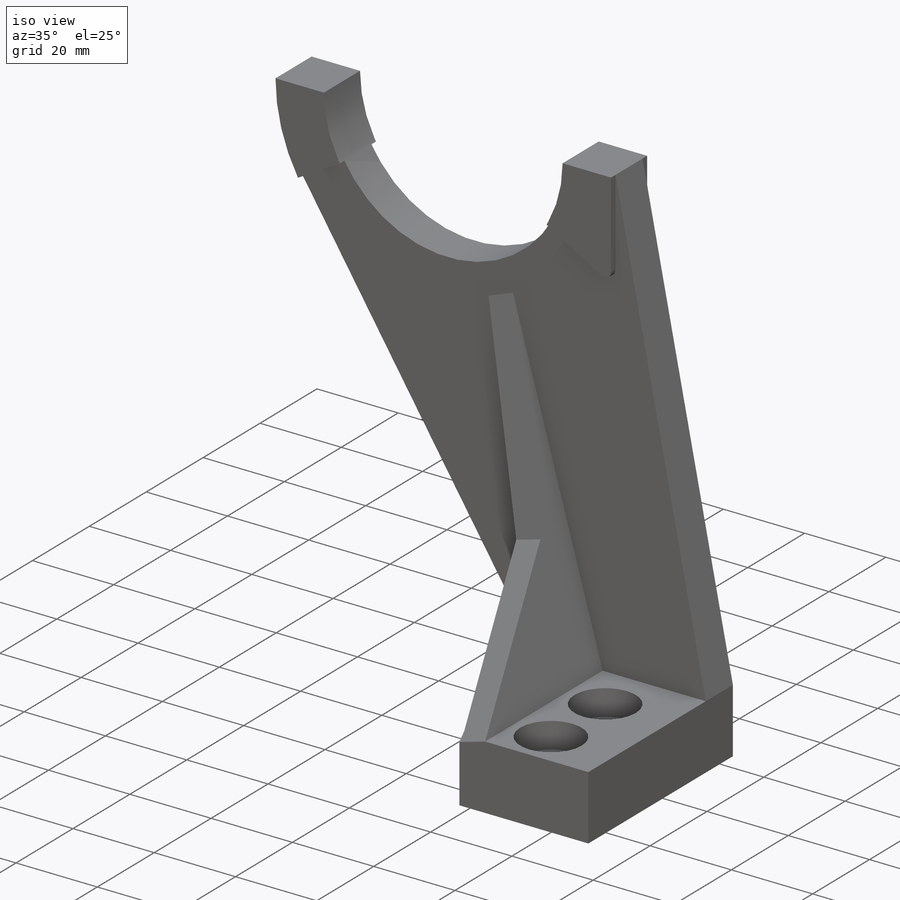
[diagram: iso view]
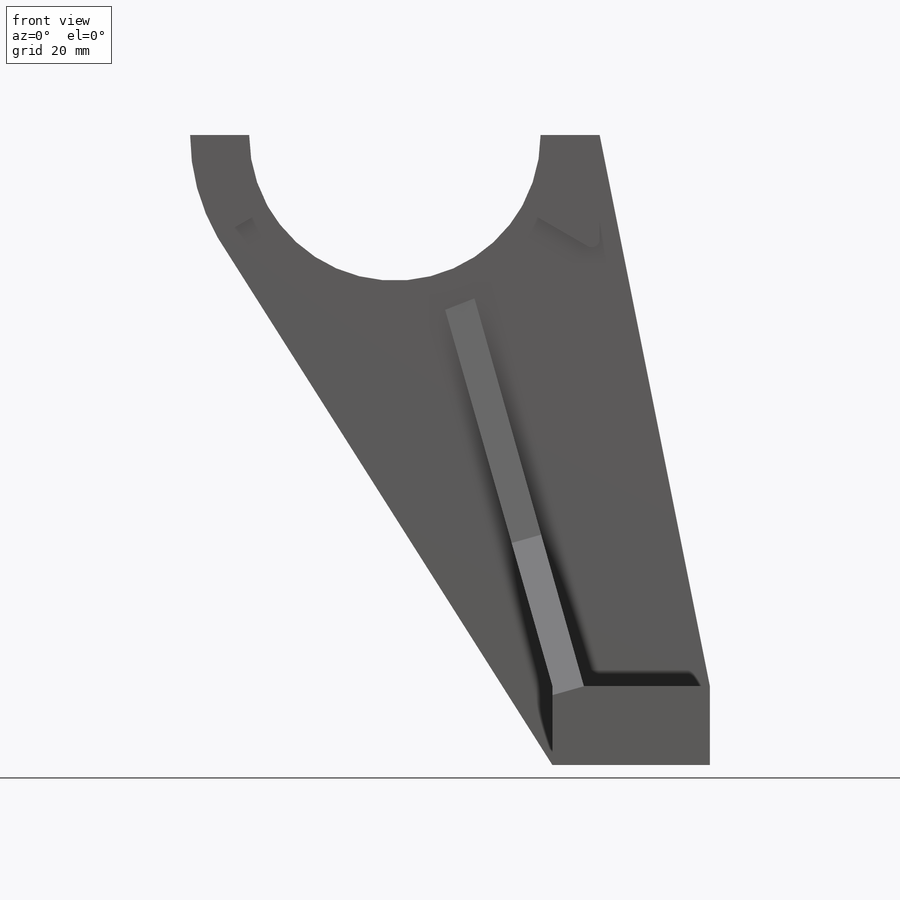
[diagram: front view]
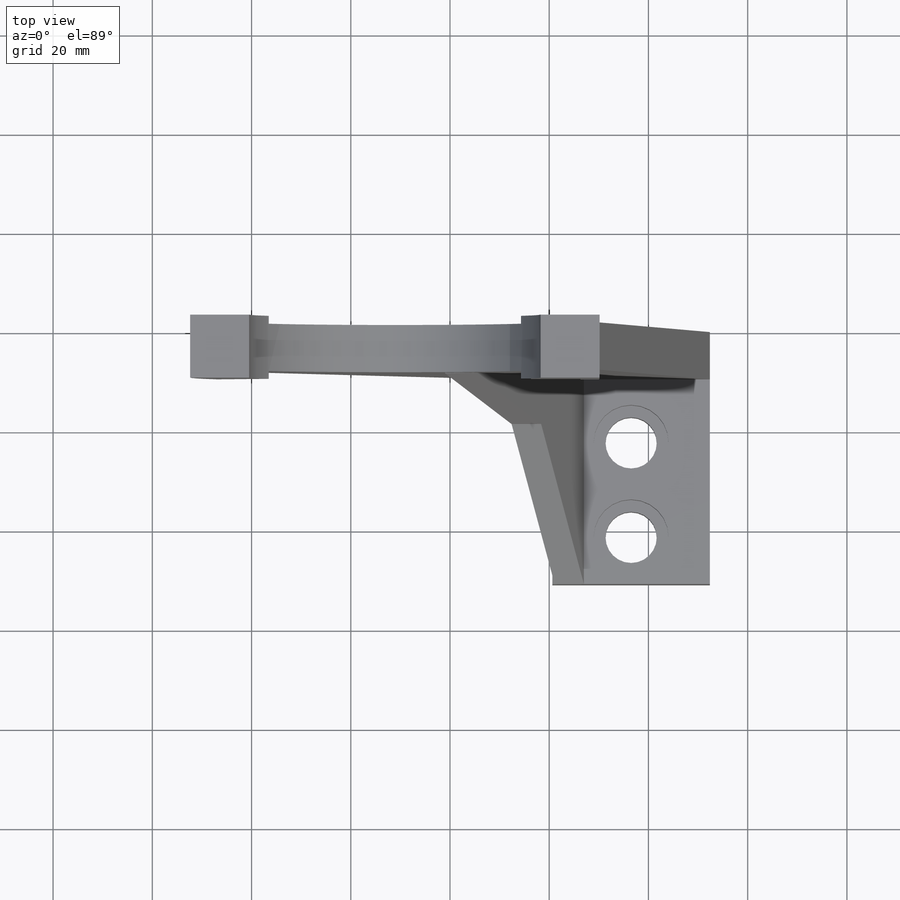
[diagram: top view]
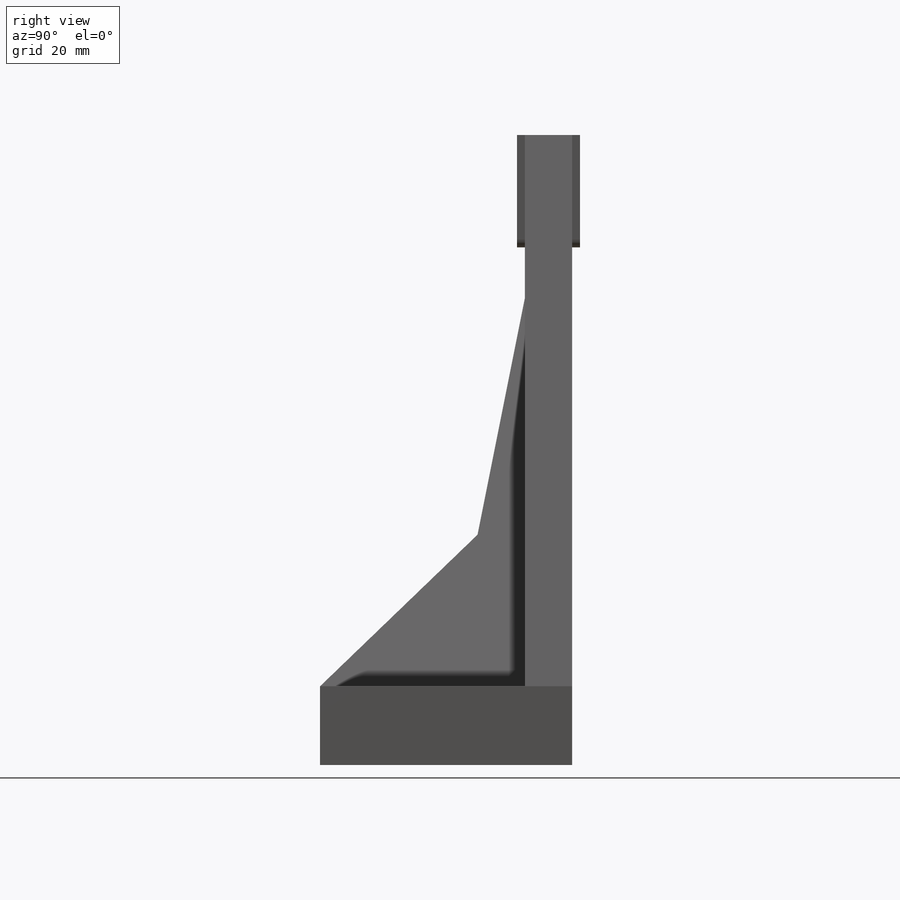
[diagram: right view]
SOLIDWORKS PART (.sldprt)
format: sldprt  version: not decoded by parser v0  size: 323,072 bytes
history: native  units: mm
features: sketch x7, plane x4, extrude x4, cut_extrude x3, fillet x2, material x1 (+8 scaffold rows collapsed)
feature tree (29):
  scaffold x8  (default folders/planes/origin — collapsed)
  material  "Material <sin especificar>"
  plane  "Alzado"
  plane  "Planta"
  plane  "Vista lateral"
  sketch  "Croquis1"  dims[c1.D7=36.5125mm c1.D8=41.275mm c1.D1=104.775mm c1.D2=127.0mm c1.D3=~29.36875mm c1.D4=~11.90625mm c1.D5=31.75mm c1.D6=15.875mm c2.D8=41.275mm c3.D8=30.0deg c3.D7=~30.136116deg]
  extrude  "Saliente-Extruir1"  Depth=9.525mm
  sketch  "Croquis2"
  extrude  "Saliente-Extruir2"  Depth=41.275mm
  sketch  "Croquis3"  dims[D3=~10.31875mm D4=~10.31875mm D1=9.525mm D2=19.05mm]
  cut_extrude  "Cortar-Extruir1"  [1 undecoded]
  sketch  "Croquis4"  dims[D1=~15.08125mm]
  cut_extrude  "Cortar-Extruir2"  Depth=6.35mm
  plane  "Plano1"  Offset=4.7625mm
  sketch  "Croquis8"  dims[c1.D1=~62.526957mm c2.D1=30.0deg]
  extrude  "Saliente-Extruir5"  Depth=12.7mm
  fillet  "Redondeo1"  Radius=1.5875mm
  fillet  "Redondeo4"  Radius=1.5875mm
  sketch  "Croquis9"  dims[D1=3.175mm D2=85.598mm D3=3.175mm D4=3.175mm D5=0.0mm]
  extrude  "Saliente-Extruir8"  Depth=41.275mm
  sketch  "Croquis12"  dims[D1=31.75mm D2=9.525mm]
  cut_extrude  "Cortar-Extruir4"  Depth=41.275mm
decode coverage: 14 of 16 modeling features carry decoded parameters
note: ~ marks probable driven/reference dimensions
note: 1 parameter value undecoded
note: suppression state not decoded; provenance and decode notes live in map.json
